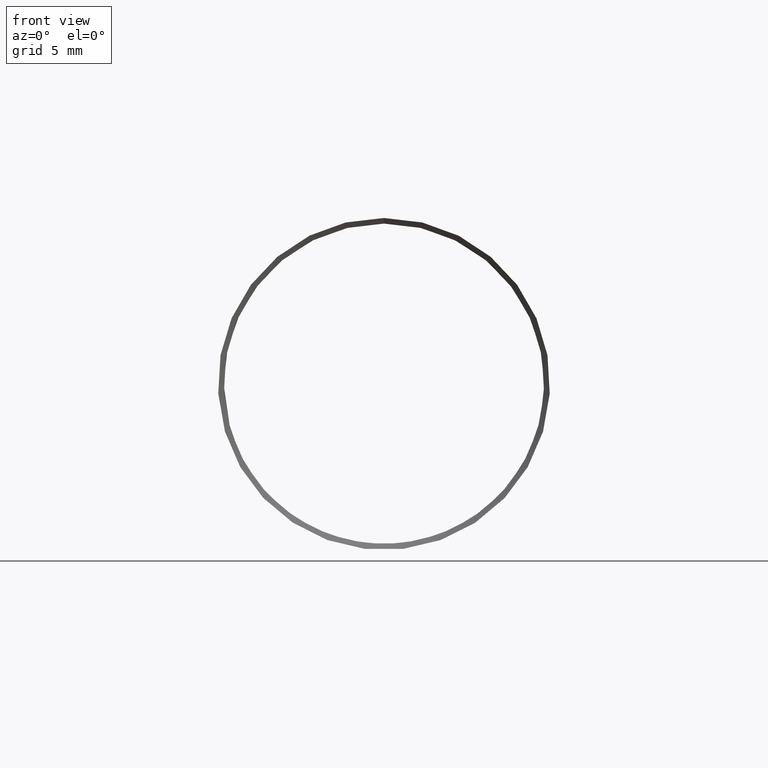
[diagram: clean part render]
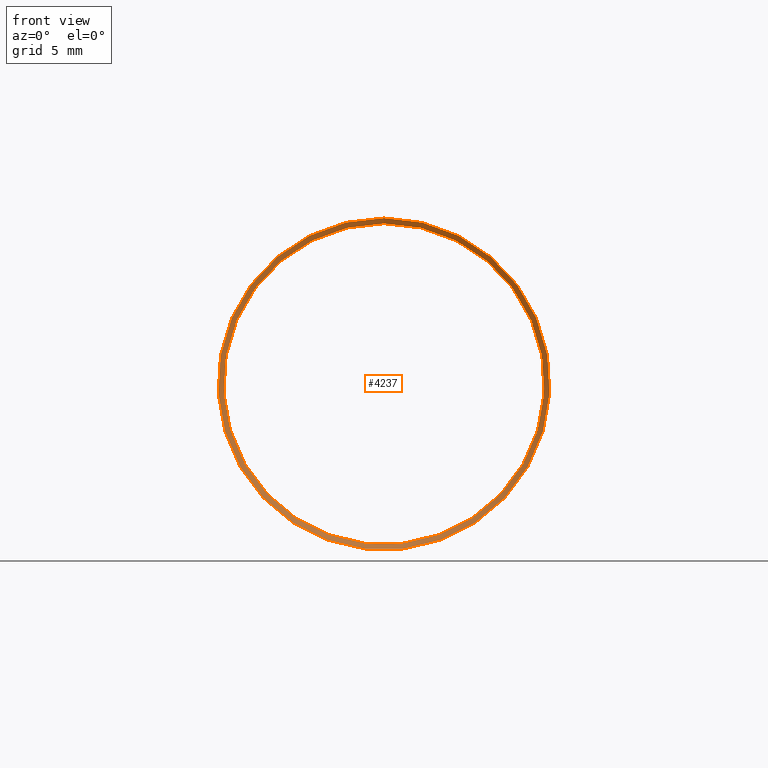
[diagram: same view with one face highlighted and labeled with its STEP entity id]
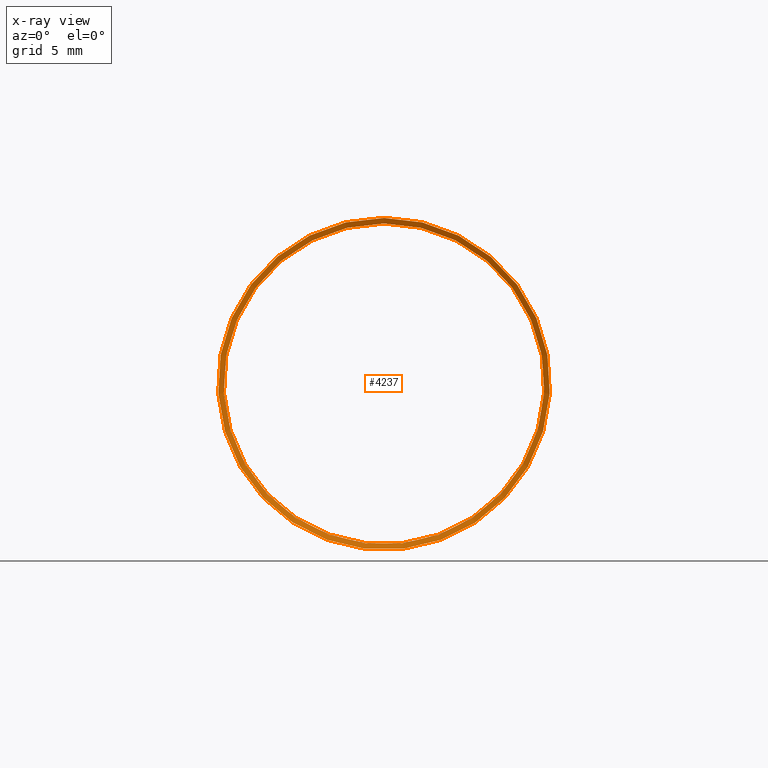
[diagram: x-ray of the same camera — body ghosted, the highlighted face saturated]
A machine part, front view. The second image highlights one B-rep face of the part: STEP entity #4237.
The next image is the same camera in x-ray: the body ghosted, the highlighted face saturated — about 0% of this face is hidden behind the body in this view.
In plain terms, the highlighted conical surface has half-angle 59.736 deg.
Its self-contained STEP definition (entity closure, byte-faithful):
#294 = DIRECTION ( 'NONE',  ( 0.0000000000000000000, 0.0000000000000000000, -1.000000000000000000 ) ) ;
#321 = DIRECTION ( 'NONE',  ( -0.0000000000000000000, -1.000000000000000000, -0.0000000000000000000 ) ) ;
#1583 = EDGE_LOOP ( 'NONE', ( #5695 ) ) ;
#1768 = CARTESIAN_POINT ( 'NONE',  ( 1.836970198721029600E-015, -10.75799785047785300, 0.0000000000000000000 ) ) ;
#1963 = CIRCLE ( 'NONE', #6966, 6.150000000000001200 ) ;
#2295 = FACE_BOUND ( 'NONE', #3404, .T. ) ;
#2408 = FACE_OUTER_BOUND ( 'NONE', #1583, .T. ) ;
#2799 = ORIENTED_EDGE ( 'NONE', *, *, #7208, .F. ) ;
#3375 = CARTESIAN_POINT ( 'NONE',  ( 0.0000000000000000000, -10.75799785047785300, 0.0000000000000000000 ) ) ;
#3404 = EDGE_LOOP ( 'NONE', ( #2799 ) ) ;
#3852 = VERTEX_POINT ( 'NONE', #8681 ) ;
#3935 = DIRECTION ( 'NONE',  ( 0.0000000000000000000, 0.0000000000000000000, 1.000000000000000000 ) ) ;
#4092 = VERTEX_POINT ( 'NONE', #7283 ) ;
#4237 = ADVANCED_FACE ( 'NONE', ( #2295, #2408 ), #7883, .F. ) ;
#5168 = EDGE_CURVE ( 'NONE', #3852, #3852, #6906, .T. ) ;
#5695 = ORIENTED_EDGE ( 'NONE', *, *, #5168, .F. ) ;
#6642 = CARTESIAN_POINT ( 'NONE',  ( 1.836970198721029600E-015, -10.63243998375364000, 0.0000000000000000000 ) ) ;
#6830 = DIRECTION ( 'NONE',  ( -0.0000000000000000000, -1.000000000000000000, -0.0000000000000000000 ) ) ;
#6906 = CIRCLE ( 'NONE', #7190, 6.365177314821161200 ) ;
#6966 = AXIS2_PLACEMENT_3D ( 'NONE', #6642, #321, #3935 ) ;
#7070 = AXIS2_PLACEMENT_3D ( 'NONE', #1768, #6830, #294 ) ;
#7190 = AXIS2_PLACEMENT_3D ( 'NONE', #3375, #8961, #7633 ) ;
#7208 = EDGE_CURVE ( 'NONE', #4092, #4092, #1963, .T. ) ;
#7283 = CARTESIAN_POINT ( 'NONE',  ( 1.836970198721029600E-015, -10.63243998375364000, 6.150000000000001200 ) ) ;
#7633 = DIRECTION ( 'NONE',  ( 0.0000000000000000000, 0.0000000000000000000, 1.000000000000000000 ) ) ;
#7883 = CONICAL_SURFACE ( 'NONE', #7070, 6.365177314821162100, 1.042590935681729300 ) ;
#8681 = CARTESIAN_POINT ( 'NONE',  ( 0.0000000000000000000, -10.75799785047785300, 6.365177314821161200 ) ) ;
#8961 = DIRECTION ( 'NONE',  ( 0.0000000000000000000, 1.000000000000000000, 0.0000000000000000000 ) ) ;